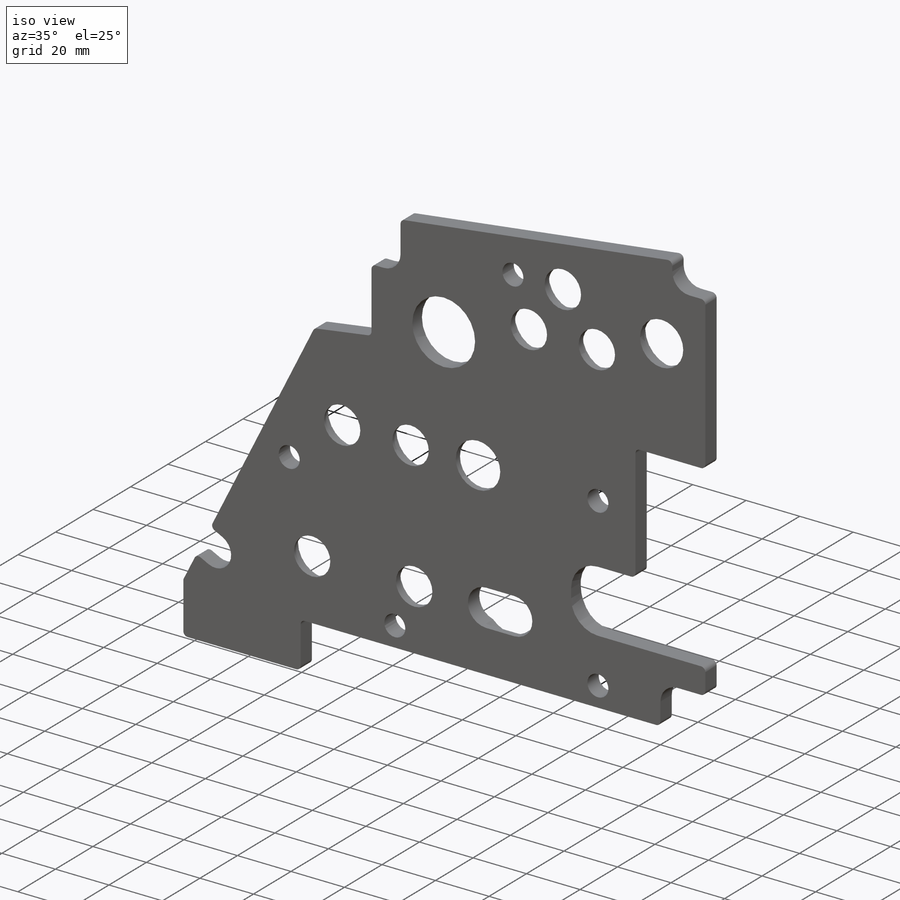
[diagram: iso view]
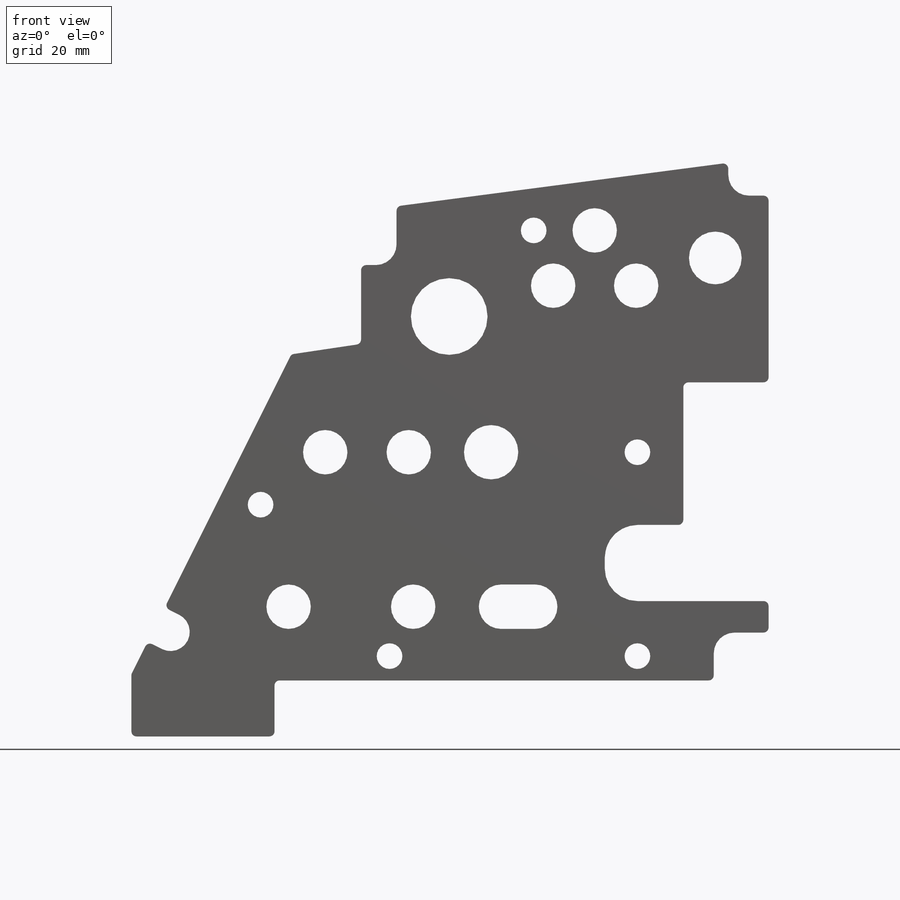
[diagram: front view]
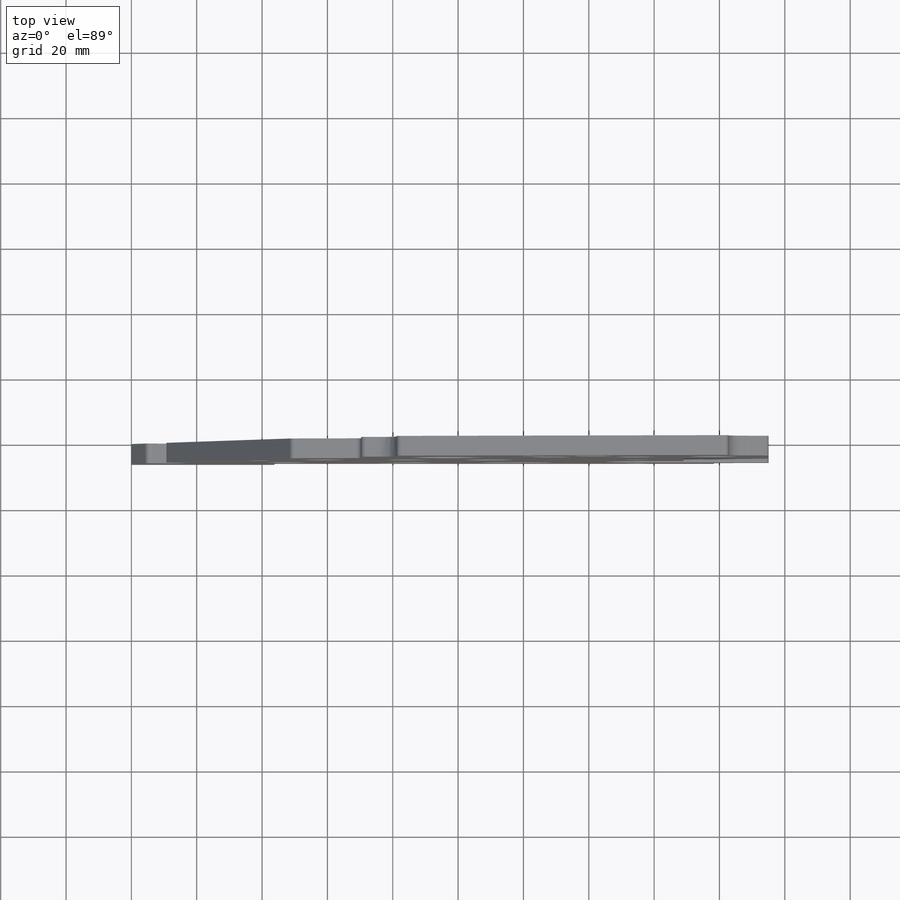
[diagram: top view]
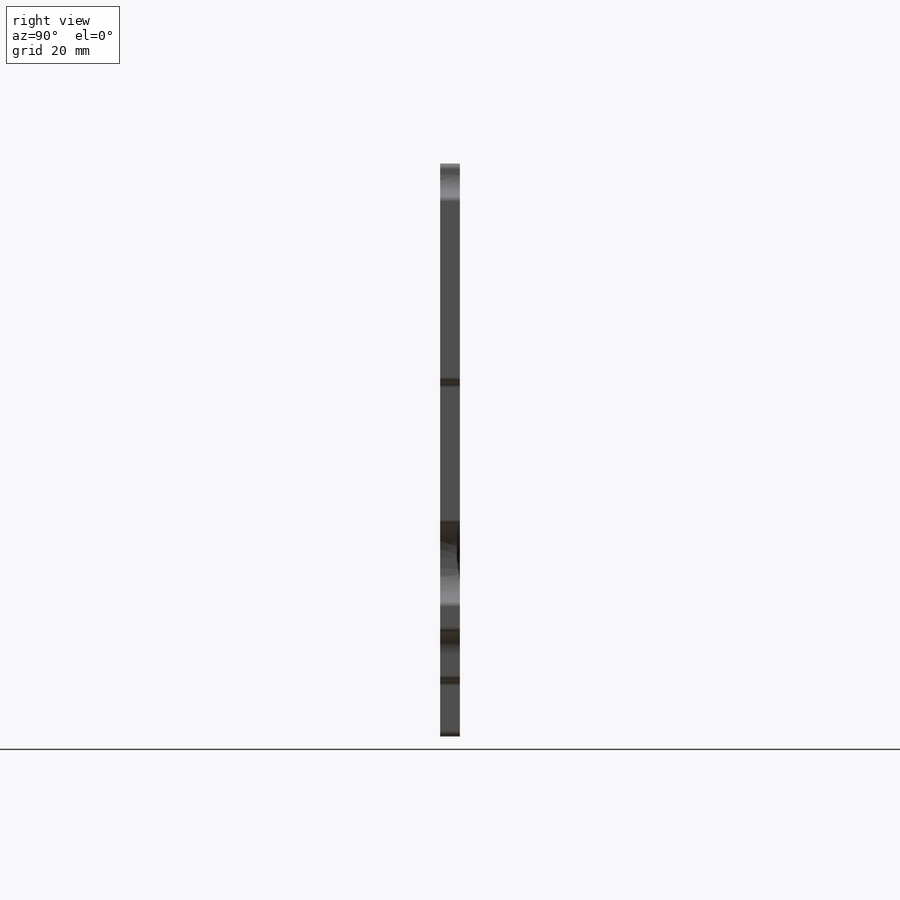
[diagram: right view]
SOLIDWORKS PART (.sldprt)
format: sldprt  version: not decoded by parser v0  size: 610,304 bytes
history: native  units: mm
features: sketch x4, fillet x3, cut_extrude x3, chamfer x3, material x1, extrude x1 (+17 scaffold rows collapsed)
feature tree (32):
  scaffold x17  (default folders/planes/origin — collapsed)
  material  "Acrylic (Medium-high impact)"
  sketch  "Sketch1"  dims[c1.D18=10.0mm c1.D22=11.7475mm c1.D1=43.815mm c1.D2=19.05mm c1.D3=17.145mm c1.D4=134.4422mm c1.D5=14.6431mm c1.D6=16.5989mm c1.D7=9.4361mm c1.D8=97.9043mm c1.D9=48.9331mm c1.D10=194.8561mm c2.D7=~53.265158mm c3.D7=~125.779699deg c4.D7=~52.576462mm c5.D7=81.5deg c5.D13=17.9959mm c5.D6=160.0581mm c5.D15=26.1112mm c6.D6=160.0581mm c6.D12=~109.451817mm c7.D12=~26.556132deg c7.D23=~9.736048mm c8.D23=90.0deg c8.D24=~8.450053mm c9.D24=90.0deg c9.D22=24.2951mm c9.D10=195.0466mm c9.D6=175.0949mm c9.D7=21.3741mm c9.D11=144.2847mm c9.D12=10.8585mm c9.D14=66.9417mm c9.D15=26.1112mm c9.D16=23.3045mm c9.D17=50.165mm c9.D19=57.15mm c9.D20=12.3444mm c10.D12=32.004mm c10.D21=11.9888mm]
  extrude  "Extrude1"  Depth=6.0452mm
  fillet  "Fillet1"  Radius=1.5875mm
  fillet  "Fillet2"  Radius=6.35mm
  sketch  "Sketch2"  dims[c1.D20=13.589mm c1.D21=16.6243mm c1.D22=23.4696mm c1.D23=16.1417mm c1.D9=113.1316mm c1.D10=10.4775mm c1.D1=22.5679mm c1.D2=69.85mm c1.D3=111.3917mm c1.D4=120.8278mm c1.D5=137.7442mm c1.D6=129.3114mm c1.D7=48.1203mm c1.D8=86.2584mm c2.D9=113.1316mm c2.D10=10.4775mm c2.D11=59.3344mm c2.D12=84.8995mm c2.D13=110.109mm c2.D14=155.0797mm c2.D15=97.282mm c2.D16=141.8082mm c2.D17=12.7mm c2.D18=12.7mm c2.D19=178.7271mm]
  cut_extrude  "Switch Cutout"  [1 undecoded]
  sketch  "Sketch3"  dims[D7=7.8486mm D1=7.4422mm D2=79.0194mm D3=154.8892mm D4=53.7972mm D5=39.5478mm D6=123.1392mm]
  cut_extrude  "Front Screw Sleeve Cutout"  [1 undecoded]
  sketch  "Sketch4"  dims[D1=25.6794mm D2=19.05mm D3=19.05mm D4=19.05mm D5=19.05mm D6=19.05mm D7=20.7264mm D8=19.05mm D9=19.05mm D10=19.05mm]
  cut_extrude  "Extrude4"  Depth=3.81mm
  fillet  "Fillet3"  Radius=1.5875mm
  chamfer  "Chamfer1"  Distance=1.5875mm Angle=60deg
  chamfer  "Chamfer2"  Distance=1.5875mm Angle=30deg
  chamfer  "Chamfer3"  Distance=1.5875mm Angle=30deg
decode coverage: 12 of 14 modeling features carry decoded parameters
note: ~ marks probable driven/reference dimensions
note: 2 parameter values undecoded
note: suppression state not decoded; provenance and decode notes live in map.json
